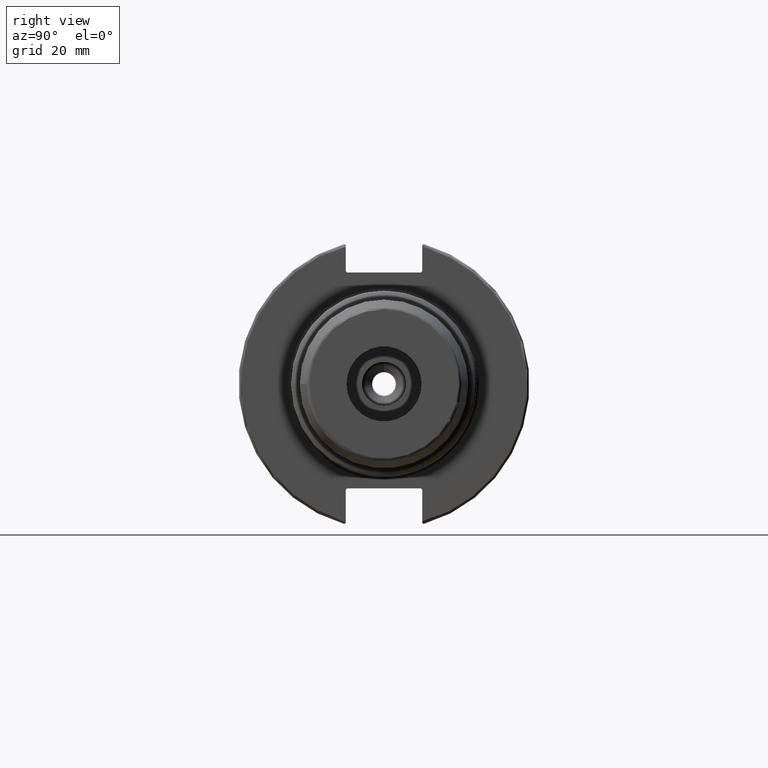
[diagram: clean part render]
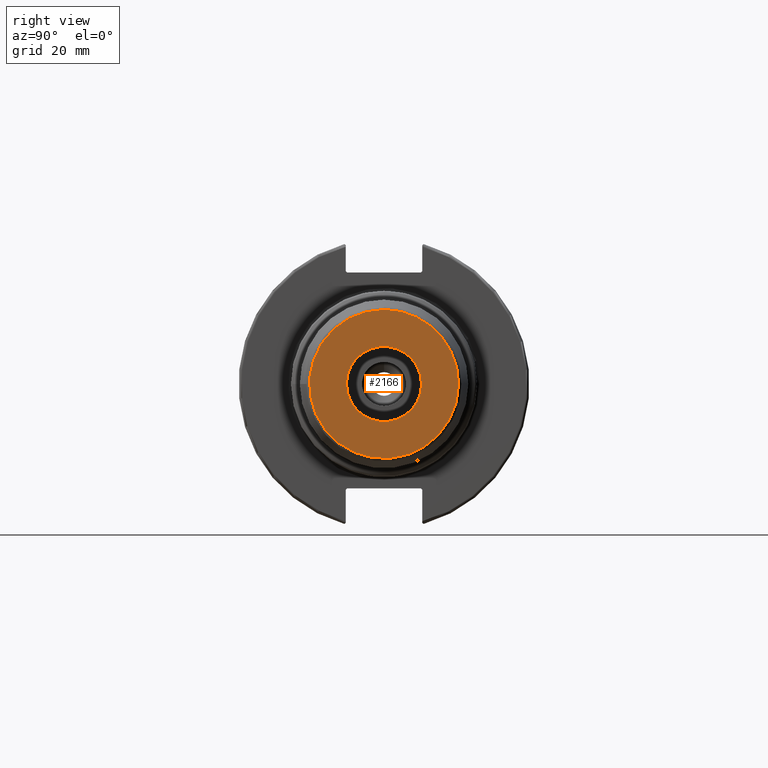
[diagram: same view with one face highlighted and labeled with its STEP entity id]
A machine part, right view. The second image highlights one B-rep face of the part: STEP entity #2166.
In plain terms, the highlighted planar face has unit normal (1, 0, 0).
Its self-contained STEP definition (entity closure, byte-faithful):
#75=FACE_BOUND('',#526,.T.);
#93=PLANE('',#2367);
#415=FACE_OUTER_BOUND('',#525,.T.);
#525=EDGE_LOOP('',(#1575,#1576));
#526=EDGE_LOOP('',(#1577,#1578));
#696=CIRCLE('',#2357,25.2109003688227);
#701=CIRCLE('',#2362,25.2109003688227);
#705=CIRCLE('',#2368,12.7);
#706=CIRCLE('',#2369,12.7);
#874=VERTEX_POINT('',#3423);
#875=VERTEX_POINT('',#3424);
#882=VERTEX_POINT('',#3443);
#883=VERTEX_POINT('',#3444);
#1143=EDGE_CURVE('',#874,#875,#696,.T.);
#1148=EDGE_CURVE('',#875,#874,#701,.T.);
#1153=EDGE_CURVE('',#882,#883,#705,.T.);
#1154=EDGE_CURVE('',#883,#882,#706,.T.);
#1575=ORIENTED_EDGE('',*,*,#1143,.F.);
#1576=ORIENTED_EDGE('',*,*,#1148,.F.);
#1577=ORIENTED_EDGE('',*,*,#1153,.F.);
#1578=ORIENTED_EDGE('',*,*,#1154,.F.);
#2166=ADVANCED_FACE('',(#415,#75),#93,.T.);
#2357=AXIS2_PLACEMENT_3D('',#3425,#2746,#2747);
#2362=AXIS2_PLACEMENT_3D('',#3433,#2756,#2757);
#2367=AXIS2_PLACEMENT_3D('',#3442,#2767,#2768);
#2368=AXIS2_PLACEMENT_3D('',#3445,#2769,#2770);
#2369=AXIS2_PLACEMENT_3D('',#3446,#2771,#2772);
#2746=DIRECTION('center_axis',(-1.,0.,0.));
#2747=DIRECTION('ref_axis',(0.,-1.,1.83697019872103E-16));
#2756=DIRECTION('center_axis',(-1.,0.,0.));
#2757=DIRECTION('ref_axis',(0.,-1.,1.83697019872103E-16));
#2767=DIRECTION('center_axis',(1.,0.,0.));
#2768=DIRECTION('ref_axis',(0.,0.,-1.));
#2769=DIRECTION('center_axis',(1.,0.,0.));
#2770=DIRECTION('ref_axis',(0.,0.,-1.));
#2771=DIRECTION('center_axis',(1.,0.,0.));
#2772=DIRECTION('ref_axis',(0.,0.,-1.));
#3423=CARTESIAN_POINT('',(105.,25.2109003688227,-7.71861211007539E-15));
#3424=CARTESIAN_POINT('',(105.,-3.08744484403016E-15,25.2109003688227));
#3425=CARTESIAN_POINT('Origin',(105.,0.,0.));
#3433=CARTESIAN_POINT('Origin',(105.,0.,0.));
#3442=CARTESIAN_POINT('Origin',(105.,12.7,0.));
#3443=CARTESIAN_POINT('',(105.,12.7,0.));
#3444=CARTESIAN_POINT('',(105.,-12.7,-1.55530143491714E-15));
#3445=CARTESIAN_POINT('Origin',(105.,0.,0.));
#3446=CARTESIAN_POINT('Origin',(105.,0.,0.));